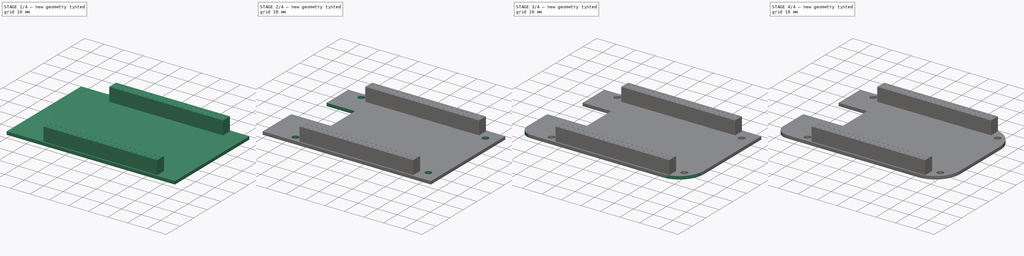
[diagram: build sequence overview — one tinted view per stage of 4, left to right]
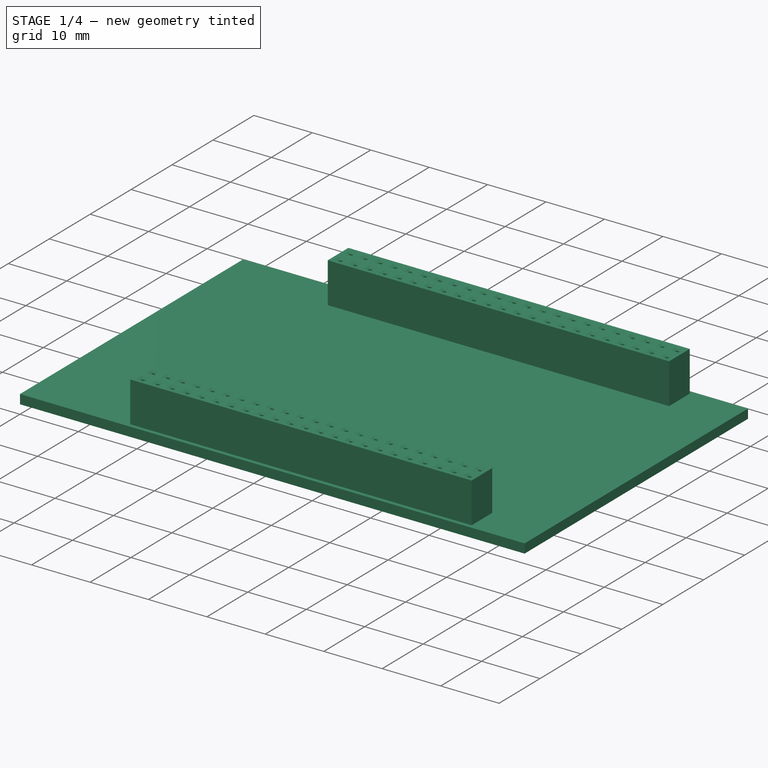
[diagram: stage 1 of 4 — iso view after this stage's code; geometry added in this stage tinted green]
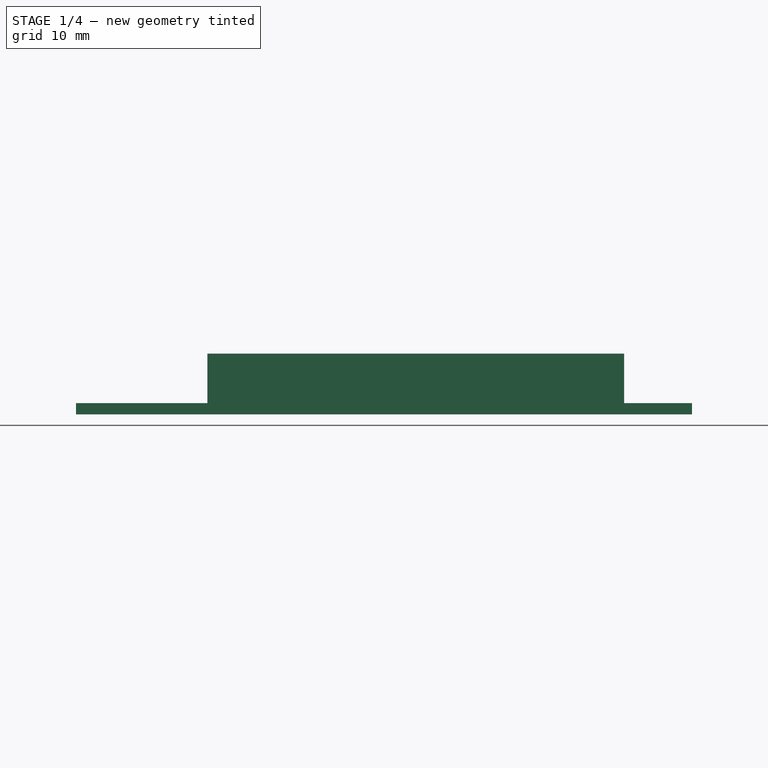
[diagram: stage 1 of 4 — front view after this stage's code; geometry added in this stage tinted green]
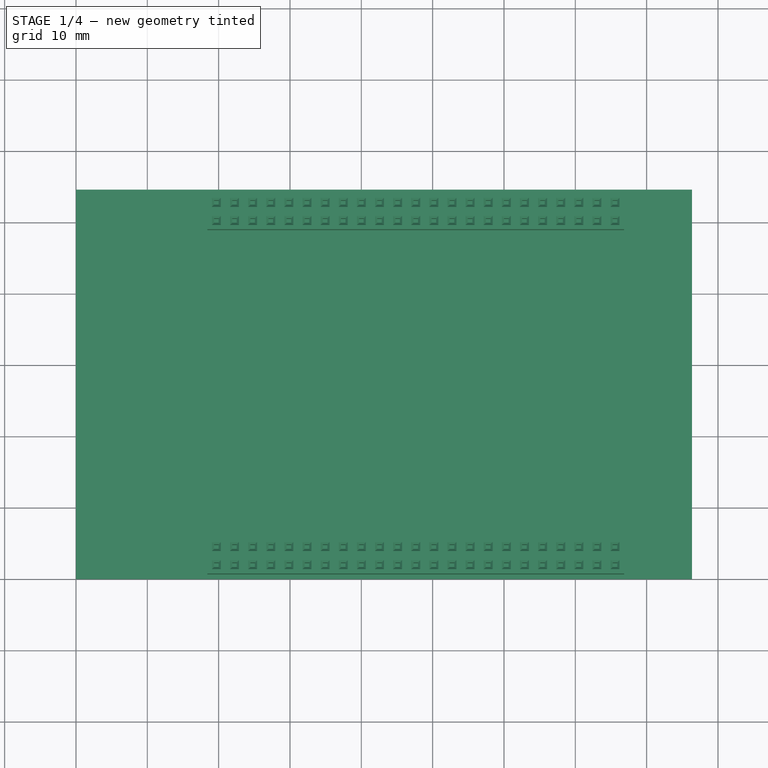
[diagram: stage 1 of 4 — top view after this stage's code; geometry added in this stage tinted green]
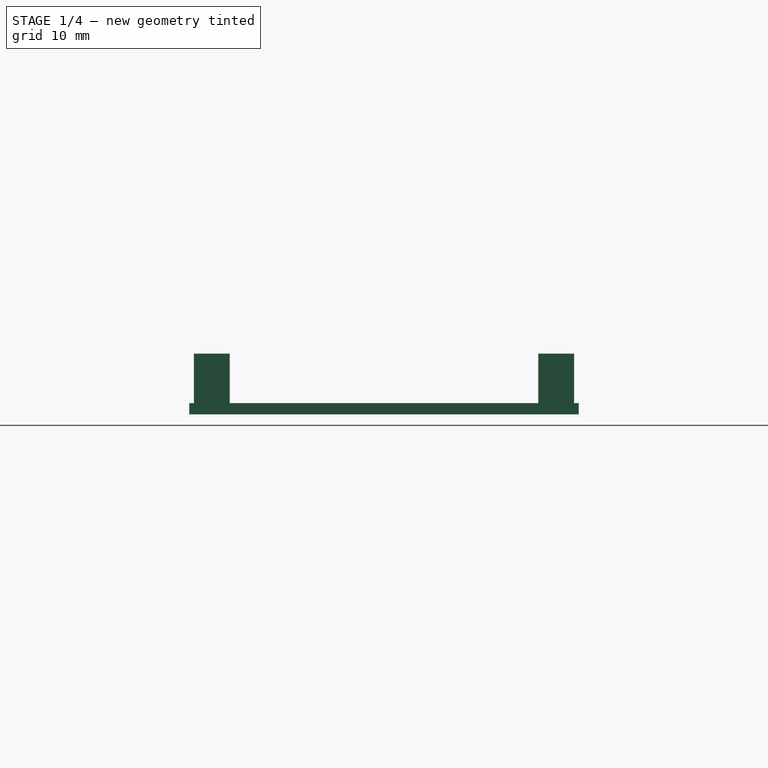
[diagram: stage 1 of 4 — right view after this stage's code; geometry added in this stage tinted green]
FCSTD DOCUMENT
Label: beaglebone_cape_model
License: CC-BY 3.0
LicenseURL: http://creativecommons.org/licenses/by/3.0/
objects: Part::Feature×24, Sketcher::SketchObject×9, PartDesign::Pocket×8, Part::MultiFuse×2, PartDesign::Pad×1
note: 53 computed .brp shape members not serialized (recipe doc carries the construction recipe); baked Part::Feature solids carry a one-line shape summary decoded from their .brp

FEATURE [Sketcher::SketchObject] Sketch  label="Outline Sketch"
  sketch-geometry (4):
    g0: LineSegment StartX=0 StartY=54.61 StartZ=0 EndX=86.36 EndY=54.61 EndZ=0
    g1: LineSegment StartX=86.36 StartY=54.61 StartZ=0 EndX=86.36 EndY=0 EndZ=0
    g2: LineSegment StartX=86.36 StartY=0 StartZ=0 EndX=0 EndY=0 EndZ=0
    g3: LineSegment StartX=0 StartY=0 StartZ=0 EndX=0 EndY=54.61 EndZ=0
  constraints (11):
    c: Coincident(g0,g1)
    c: Coincident(g1,g2)
    c: Coincident(g2,g3)
    c: Coincident(g3,g0)
    c: Horizontal(g0)
    c: Horizontal(g2)
    c: Vertical(g1)
    c: Vertical(g3)
    c: DistanceY(g3) = 54.61
    c: DistanceX(g0) = 86.36
    c: Coincident(g2,g-1)
FEATURE [PartDesign::Pad] Pad  label="Outline"
  Length = 1.58
  Length2 = 100
  Sketch = -> Sketch
  Type = 0
FEATURE [Part::Feature] Part__Feature142  label="Female Header Bottom 23"
  shape: bbox 2.54 x 5.029 x 8.509 mm, 42 faces (baked)
FEATURE [Part::Feature] Part__Feature  label="Female Header Bottom 22"
  Placement = pos=(-2.54,0,0) rot=(0,0,1;0rad)
  shape: bbox 2.54 x 5.029 x 8.509 mm, 42 faces (baked)
FEATURE [Part::Feature] Part__Feature143  label="Female Header Bottom 21"
  Placement = pos=(-5.08,0,0) rot=(0,0,1;0rad)
  shape: bbox 2.54 x 5.029 x 8.509 mm, 42 faces (baked)
FEATURE [Part::Feature] Part__Feature144  label="Female Header Bottom 20"
  Placement = pos=(-7.62,0,0) rot=(0,0,1;0rad)
  shape: bbox 2.54 x 5.029 x 8.509 mm, 42 faces (baked)
FEATURE [Part::Feature] Part__Feature145  label="Female Header Bottom 19"
  Placement = pos=(-10.16,0,0) rot=(0,0,1;0rad)
  shape: bbox 2.54 x 5.029 x 8.509 mm, 42 faces (baked)
FEATURE [Part::Feature] Part__Feature146  label="Female Header Bottom 18"
  Placement = pos=(-12.7,0,0) rot=(0,0,1;0rad)
  shape: bbox 2.54 x 5.029 x 8.509 mm, 42 faces (baked)
FEATURE [Part::Feature] Part__Feature147  label="Female Header Bottom 17"
  Placement = pos=(-15.24,0,0) rot=(0,0,1;0rad)
  shape: bbox 2.54 x 5.029 x 8.509 mm, 42 faces (baked)
FEATURE [Part::Feature] Part__Feature148  label="Female Header Bottom 16"
  Placement = pos=(-17.78,0,0) rot=(0,0,1;0rad)
  shape: bbox 2.54 x 5.029 x 8.509 mm, 42 faces (baked)
FEATURE [Part::Feature] Part__Feature149  label="Female Header Bottom 15"
  Placement = pos=(-20.32,0,0) rot=(0,0,1;0rad)
  shape: bbox 2.54 x 5.029 x 8.509 mm, 42 faces (baked)
FEATURE [Part::Feature] Part__Feature150  label="Female Header Bottom 14"
  Placement = pos=(-22.86,0,0) rot=(0,0,1;0rad)
  shape: bbox 2.54 x 5.029 x 8.509 mm, 42 faces (baked)
FEATURE [Part::Feature] Part__Feature151  label="Female Header Bottom 13"
  Placement = pos=(-25.4,0,0) rot=(0,0,1;0rad)
  shape: bbox 2.54 x 5.029 x 8.509 mm, 42 faces (baked)
FEATURE [Part::Feature] Part__Feature152  label="Female Header Bottom 12"
  Placement = pos=(-27.94,0,0) rot=(0,0,1;0rad)
  shape: bbox 2.54 x 5.029 x 8.509 mm, 42 faces (baked)
FEATURE [Part::Feature] Part__Feature153  label="Female Header Bottom 11"
  Placement = pos=(-30.48,0,0) rot=(0,0,1;0rad)
  shape: bbox 2.54 x 5.029 x 8.509 mm, 42 faces (baked)
FEATURE [Part::Feature] Part__Feature154  label="Female Header Bottom 10"
  Placement = pos=(-33.02,0,0) rot=(0,0,1;0rad)
  shape: bbox 2.54 x 5.029 x 8.509 mm, 42 faces (baked)
FEATURE [Part::Feature] Part__Feature155  label="Female Header Bottom 9"
  Placement = pos=(-35.56,0,0) rot=(0,0,1;0rad)
  shape: bbox 2.54 x 5.029 x 8.509 mm, 42 faces (baked)
FEATURE [Part::Feature] Part__Feature156  label="Female Header Bottom 8"
  Placement = pos=(-38.1,0,0) rot=(0,0,1;0rad)
  shape: bbox 2.54 x 5.029 x 8.509 mm, 42 faces (baked)
FEATURE [Part::Feature] Part__Feature157  label="Female Header Bottom 7"
  Placement = pos=(-40.64,0,0) rot=(0,0,1;0rad)
  shape: bbox 2.54 x 5.029 x 8.509 mm, 42 faces (baked)
FEATURE [Part::Feature] Part__Feature158  label="Female Header Bottom 6"
  Placement = pos=(-43.18,0,0) rot=(0,0,1;0rad)
  shape: bbox 2.54 x 5.029 x 8.509 mm, 42 faces (baked)
FEATURE [Part::Feature] Part__Feature159  label="Female Header Bottom 5"
  Placement = pos=(-45.72,0,0) rot=(0,0,1;0rad)
  shape: bbox 2.54 x 5.029 x 8.509 mm, 42 faces (baked)
FEATURE [Part::Feature] Part__Feature160  label="Female Header Bottom 4"
  Placement = pos=(-48.26,0,0) rot=(0,0,1;0rad)
  shape: bbox 2.54 x 5.029 x 8.509 mm, 42 faces (baked)
FEATURE [Part::Feature] Part__Feature161  label="Female Header Bottom 3"
  Placement = pos=(-50.8,0,0) rot=(0,0,1;0rad)
  shape: bbox 2.54 x 5.029 x 8.509 mm, 42 faces (baked)
FEATURE [Part::Feature] Part__Feature162  label="Female Header Bottom 2"
  Placement = pos=(-53.34,0,0) rot=(0,0,1;0rad)
  shape: bbox 2.54 x 5.029 x 8.509 mm, 42 faces (baked)
FEATURE [Part::Feature] Part__Feature163  label="Female Header Bottom 1"
  Placement = pos=(-55.88,0,0) rot=(0,0,1;0rad)
  shape: bbox 2.54 x 5.029 x 8.509 mm, 42 faces (baked)
FEATURE [Part::MultiFuse] Fusion  label="Bottom Header"
  Shapes = -> [Part__Feature142,Part__Feature,Part__Feature150,Part__Feature143,Part__Feature147,Part__Feature146,Part__Feature145,Part__Feature148,Part__Feature144,Part__Feature152,Part__Feature151,Part__Feature155,Part__Feature149,Part__Feature154,Part__Feature156,Part__Feature153,Part__Feature157,Part__Feature158,Part__Feature159,Part__Feature160,Part__Feature161,Part__Feature162,Part__Feature163]
FEATURE [Part::MultiFuse] Fusion001  label="Top Header"
  Placement = pos=(0,48.26,0) rot=(0,0,1;0rad)
FEATURE [Part::Feature] Part__Feature164  label="Audio Jack"
  Placement = pos=(0,9,1.7) rot=(1,0,0;1.5708rad)
  shape: bbox 15 x 12 x 6 mm, 84 faces (baked)
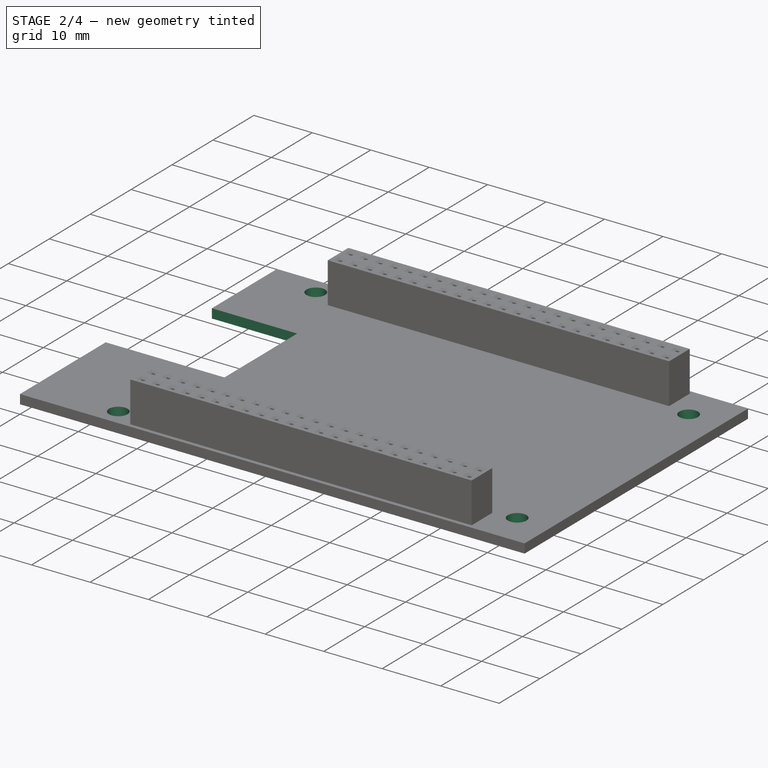
[diagram: stage 2 of 4 — iso view after this stage's code; geometry added in this stage tinted green]
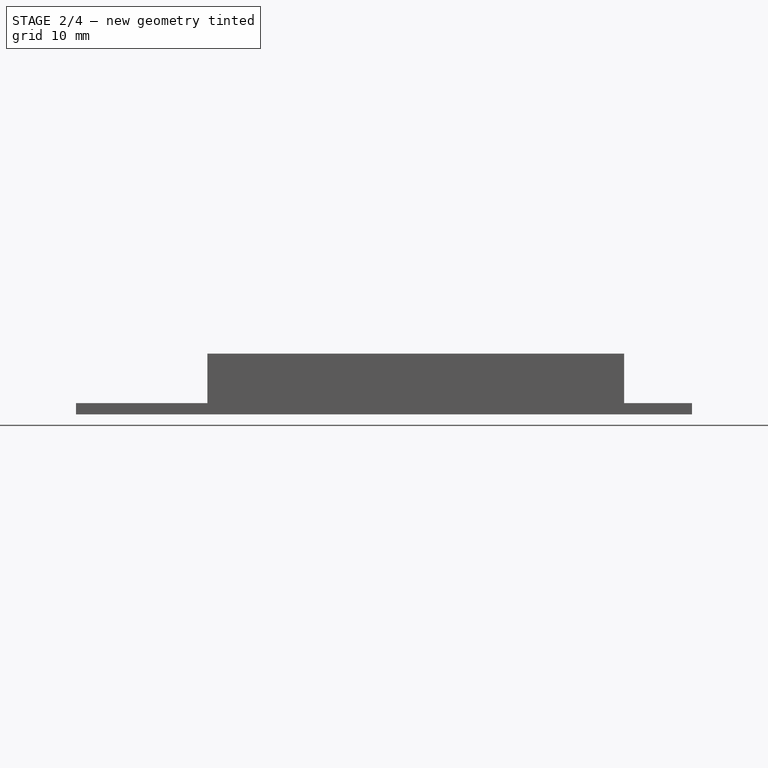
[diagram: stage 2 of 4 — front view after this stage's code; geometry added in this stage tinted green]
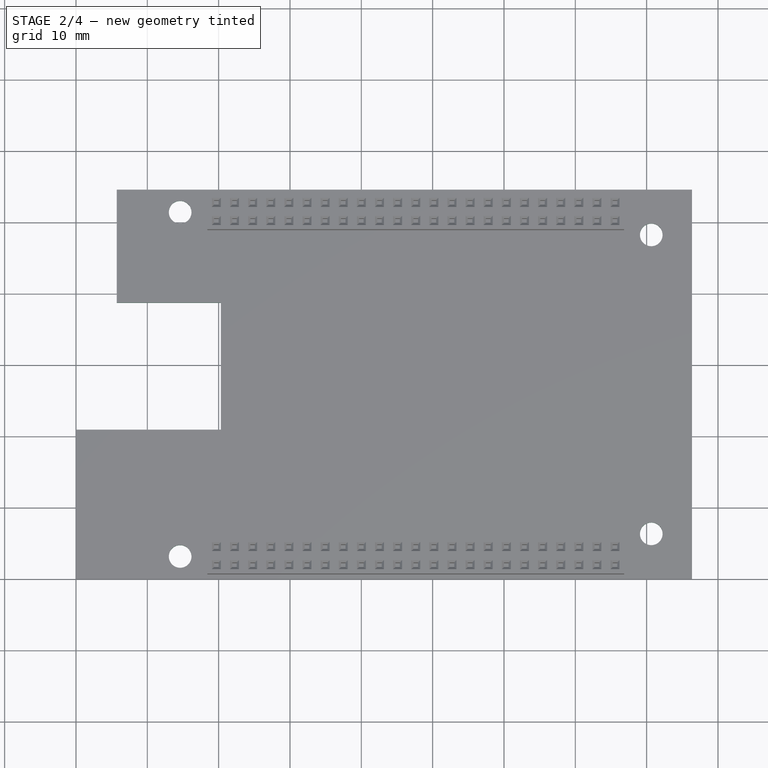
[diagram: stage 2 of 4 — top view after this stage's code; geometry added in this stage tinted green]
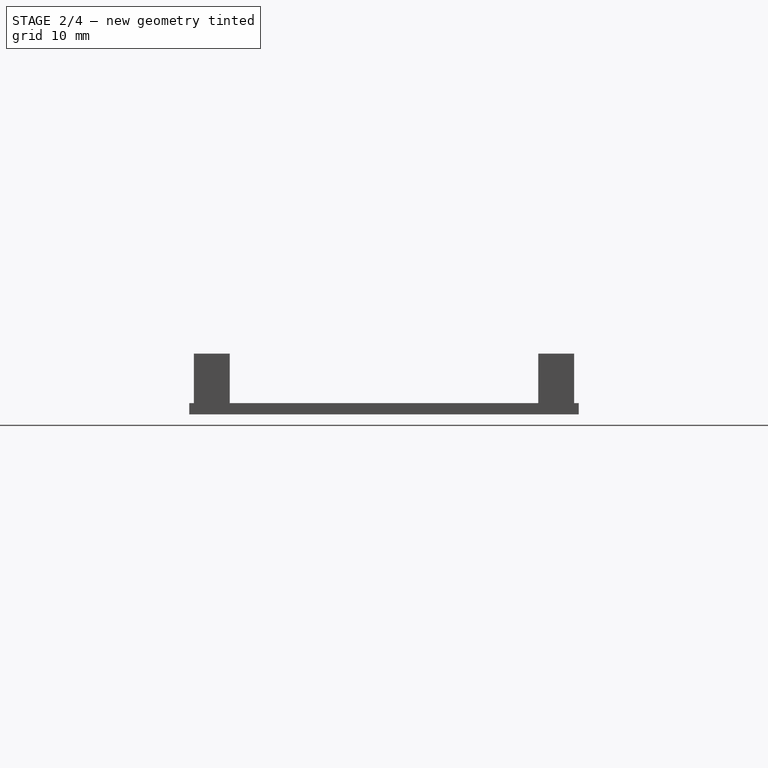
[diagram: stage 2 of 4 — right view after this stage's code; geometry added in this stage tinted green]
FEATURE [Sketcher::SketchObject] Sketch001
  Placement = pos=(0,0,1.58) rot=(0,0,1;0rad)
  Support = -> Pad [Face6]
  sketch-geometry (4):
    g0: LineSegment StartX=0 StartY=38.735 StartZ=0 EndX=20.32 EndY=38.735 EndZ=0
    g1: LineSegment StartX=20.32 StartY=38.735 StartZ=0 EndX=20.32 EndY=20.955 EndZ=0
    g2: LineSegment StartX=20.32 StartY=20.955 StartZ=0 EndX=0 EndY=20.955 EndZ=0
    g3: LineSegment StartX=0 StartY=20.955 StartZ=0 EndX=0 EndY=38.735 EndZ=0
  constraints (12):
    c: Coincident(g0,g1)
    c: Coincident(g1,g2)
    c: Coincident(g2,g3)
    c: Coincident(g3,g0)
    c: Horizontal(g0)
    c: Horizontal(g2)
    c: Vertical(g1)
    c: Vertical(g3)
    c: DistanceY(g3) = 17.78
    c: DistanceX(g-2,g0) = 0
    c: DistanceY(g-1,g1) = 20.955
    c: DistanceX(g2) = -20.32
FEATURE [PartDesign::Pocket] Pocket  label="Ethernet Cut Out"
  Length = 1.58
  Sketch = -> Sketch001
  Type = 0
FEATURE [Sketcher::SketchObject] Sketch002
  ExternalGeometry = -> [Pocket]
  Placement = pos=(0,0,1.58) rot=(0,0,1;0rad)
  Support = -> Pocket [Face5]
  sketch-geometry (4):
    g0: LineSegment StartX=0 StartY=54.61 StartZ=0 EndX=5.715 EndY=54.61 EndZ=0
    g1: LineSegment StartX=5.715 StartY=54.61 StartZ=0 EndX=5.715 EndY=38.735 EndZ=0
    g2: LineSegment StartX=5.715 StartY=38.735 StartZ=0 EndX=0 EndY=38.735 EndZ=0
    g3: LineSegment StartX=0 StartY=38.735 StartZ=0 EndX=0 EndY=54.61 EndZ=0
  constraints (11):
    c: Coincident(g0,g1)
    c: Coincident(g1,g2)
    c: Coincident(g2,g3)
    c: Coincident(g3,g0)
    c: Horizontal(g0)
    c: Horizontal(g2)
    c: Vertical(g1)
    c: Vertical(g3)
    c: DistanceY(g3) = 15.875
    c: Coincident(g0,g-3)
    c: DistanceX(g2) = -5.715
FEATURE [PartDesign::Pocket] Pocket001  label="Power Button Cut Out"
  Length = 1.58
  Sketch = -> Sketch002
  Type = 0
FEATURE [Sketcher::SketchObject] Sketch003
  ExternalGeometry = -> [Pocket001]
  Placement = pos=(0,0,1.58) rot=(0,0,1;0rad)
  Support = -> Pocket001 [Face5]
  sketch-geometry (4):
    g0: Circle CenterX=14.605 CenterY=51.435 CenterZ=0 NormalX=0 NormalY=0 NormalZ=1 Radius=1.5875
    g1: Circle CenterX=14.605 CenterY=3.175 CenterZ=0 NormalX=0 NormalY=0 NormalZ=1 Radius=1.5875
    g2: Circle CenterX=80.645 CenterY=48.26 CenterZ=0 NormalX=0 NormalY=0 NormalZ=1 Radius=1.5875
    g3: Circle CenterX=80.645 CenterY=6.35 CenterZ=0 NormalX=0 NormalY=0 NormalZ=1 Radius=1.5875
  constraints (12):
    c: Radius(g0) = 1.5875
    c: Distance(g0,g-3) = 51.435
    c: DistanceX(g-1,g0) = 14.605
    c: Radius(g1) = 1.5875
    c: DistanceX(g-2,g1) = 14.605
    c: Distance(g1,g-3) = 3.175
    c: Radius(g2) = 1.5875
    c: Distance(g2,g-3) = 48.26
    c: DistanceX(g-2,g2) = 80.645
    c: Radius(g3) = 1.5875
    c: DistanceX(g-2,g3) = 80.645
    c: Distance(g3,g-3) = 6.35
FEATURE [PartDesign::Pocket] Pocket002  label="Holes"
  Length = 1.58
  Sketch = -> Sketch003
  Type = 0
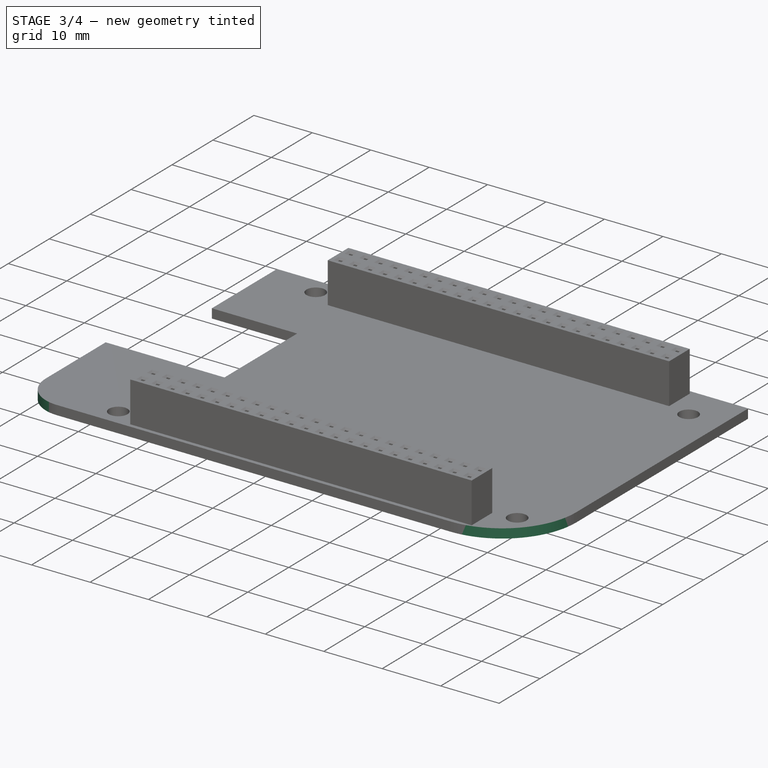
[diagram: stage 3 of 4 — iso view after this stage's code; geometry added in this stage tinted green]
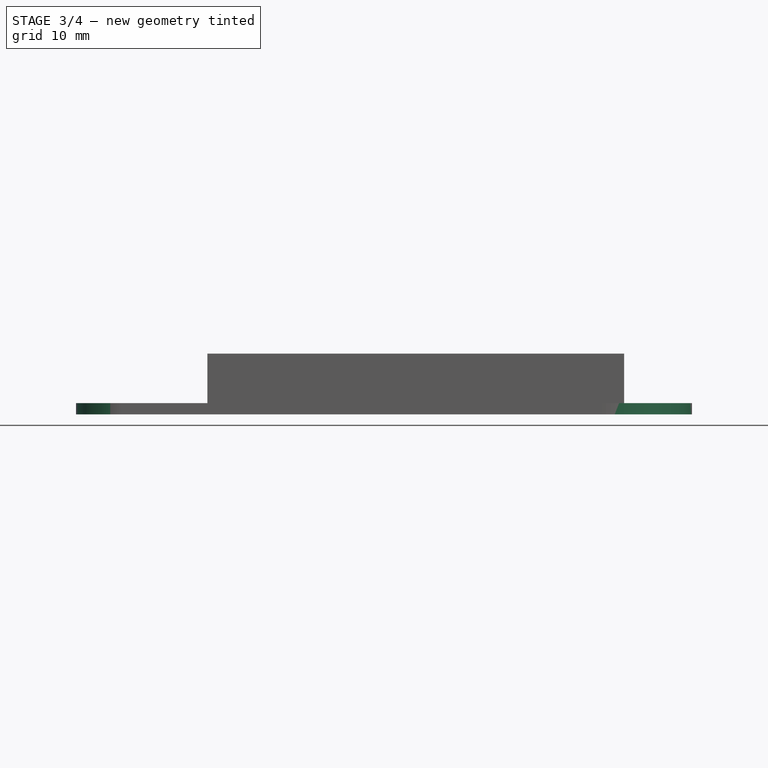
[diagram: stage 3 of 4 — front view after this stage's code; geometry added in this stage tinted green]
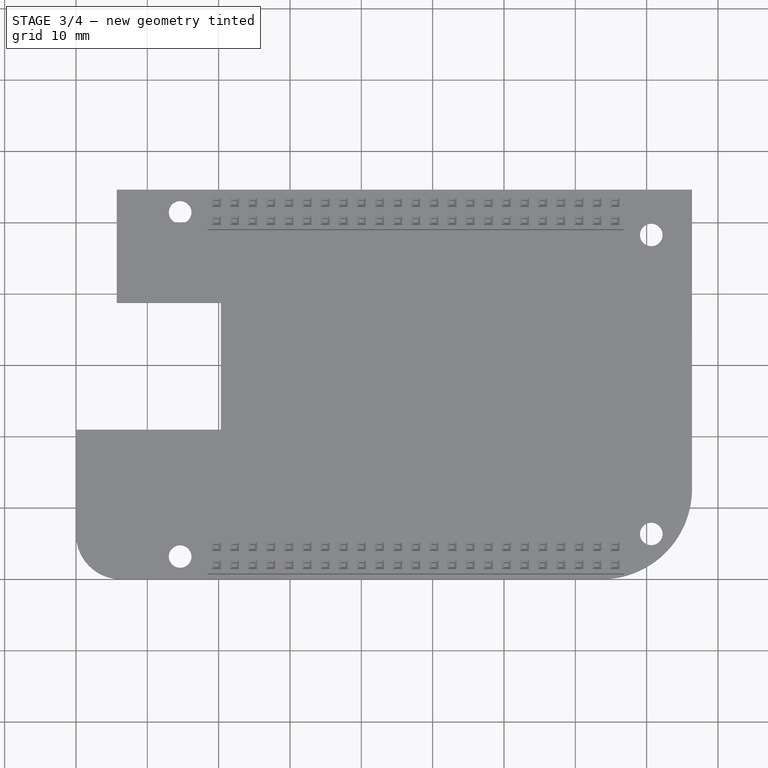
[diagram: stage 3 of 4 — top view after this stage's code; geometry added in this stage tinted green]
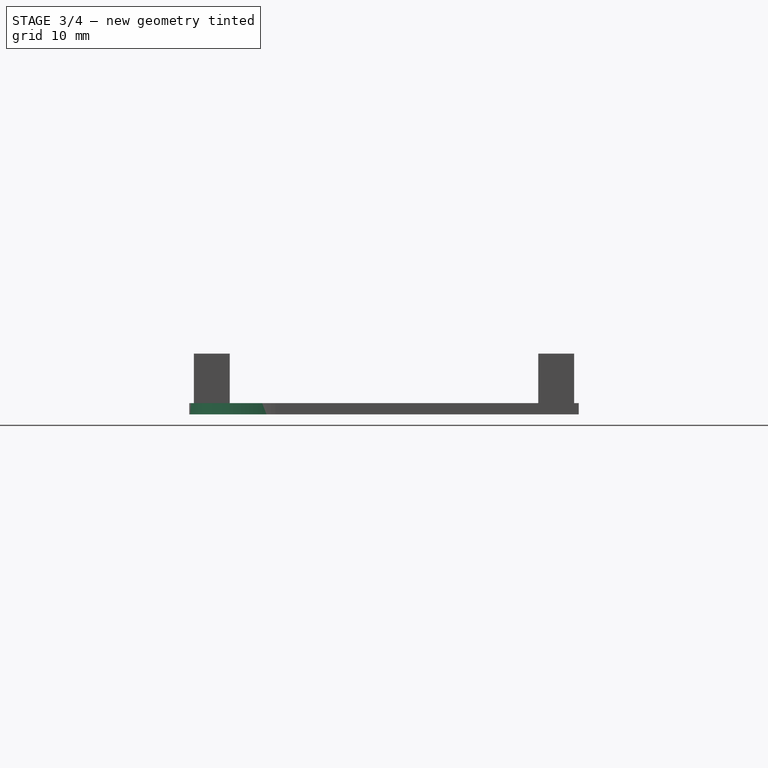
[diagram: stage 3 of 4 — right view after this stage's code; geometry added in this stage tinted green]
FEATURE [Sketcher::SketchObject] Sketch004
  ExternalGeometry = -> [Pocket002]
  Placement = pos=(0,0,1.58) rot=(0,0,1;0rad)
  Support = -> Pocket002 [Face5]
  sketch-geometry (7):
    g0: LineSegment [constr] StartX=0 StartY=20.955 StartZ=0 EndX=86.36 EndY=20.955 EndZ=0
    g1: LineSegment [constr] StartX=86.36 StartY=20.955 StartZ=0 EndX=86.36 EndY=0 EndZ=0
    g2: LineSegment [constr] StartX=86.36 StartY=0 StartZ=0 EndX=6.35 EndY=0 EndZ=0
    g3: LineSegment [constr] StartX=0 StartY=6.35 StartZ=0 EndX=0 EndY=20.955 EndZ=0
    g4: ArcOfCircle CenterX=6.35 CenterY=6.35 CenterZ=0 NormalX=0 NormalY=0 NormalZ=1 Radius=6.35 StartAngle=3.14159 EndAngle=4.71239
    g5: LineSegment StartX=0 StartY=6.35 StartZ=0 EndX=0 EndY=0 EndZ=0
    g6: LineSegment StartX=0 StartY=0 StartZ=0 EndX=6.35 EndY=0 EndZ=0
  constraints (17):
    c: Coincident(g0,g1)
    c: Coincident(g1,g2)
    c: Coincident(g3,g0)
    c: Horizontal(g0)
    c: Horizontal(g2)
    c: Vertical(g1)
    c: Vertical(g3)
    c: Tangent(g3,g4)
    c: Tangent(g2,g4)
    c: Radius(g4) = 6.35
    c: Coincident(g-3,g0)
    c: Coincident(g-4,g1)
    c: Vertical(g5)
    c: Coincident(g5,g-1)
    c: Coincident(g3,g5)
    c: Coincident(g6,g-1)
    c: Coincident(g6,g2)
FEATURE [PartDesign::Pocket] Pocket003  label="Bottom Left Hand Corner"
  Length = 1.58
  Sketch = -> Sketch004
  Type = 0
FEATURE [Sketcher::SketchObject] Sketch005
  ExternalGeometry = -> [Pocket003]
  Placement = pos=(0,0,1.58) rot=(0,0,1;0rad)
  Support = -> Pocket003 [Face5]
  sketch-geometry (7):
    g0: LineSegment [constr] StartX=0 StartY=54.61 StartZ=0 EndX=86.36 EndY=54.61 EndZ=0
    g1: LineSegment [constr] StartX=86.36 StartY=54.61 StartZ=0 EndX=86.36 EndY=12.7 EndZ=0
    g2: LineSegment [constr] StartX=73.66 StartY=0 StartZ=0 EndX=0 EndY=0 EndZ=0
    g3: LineSegment [constr] StartX=0 StartY=0 StartZ=0 EndX=0 EndY=54.61 EndZ=0
    g4: ArcOfCircle CenterX=73.66 CenterY=12.7 CenterZ=0 NormalX=0 NormalY=0 NormalZ=1 Radius=12.7 StartAngle=4.71239 EndAngle=6.28319
    g5: LineSegment StartX=73.66 StartY=0 StartZ=0 EndX=86.36 EndY=0 EndZ=0
    g6: LineSegment StartX=86.36 StartY=0 StartZ=0 EndX=86.36 EndY=12.7 EndZ=0
  constraints (17):
    c: Coincident(g0,g1)
    c: Coincident(g2,g3)
    c: Coincident(g3,g0)
    c: Horizontal(g0)
    c: Horizontal(g2)
    c: Vertical(g1)
    c: Vertical(g3)
    c: Tangent(g2,g4)
    c: Tangent(g1,g4)
    c: Radius(g4) = 12.7
    c: Coincident(g2,g-1)
    c: Coincident(g0,g-4)
    c: Horizontal(g5)
    c: Coincident(g5,g-4)
    c: Coincident(g5,g2)
    c: Coincident(g6,g1)
    c: Coincident(g6,g5)
FEATURE [PartDesign::Pocket] Pocket004  label="Bottom Right Hand Corner"
  Length = 1.58
  Sketch = -> Sketch005
  Type = 0
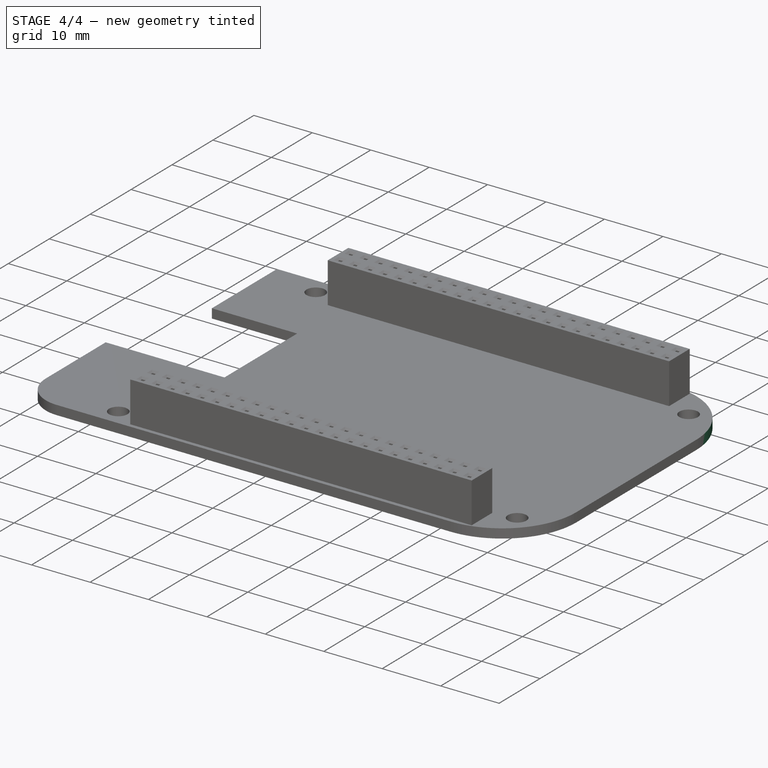
[diagram: stage 4 of 4 — iso view after this stage's code; geometry added in this stage tinted green]
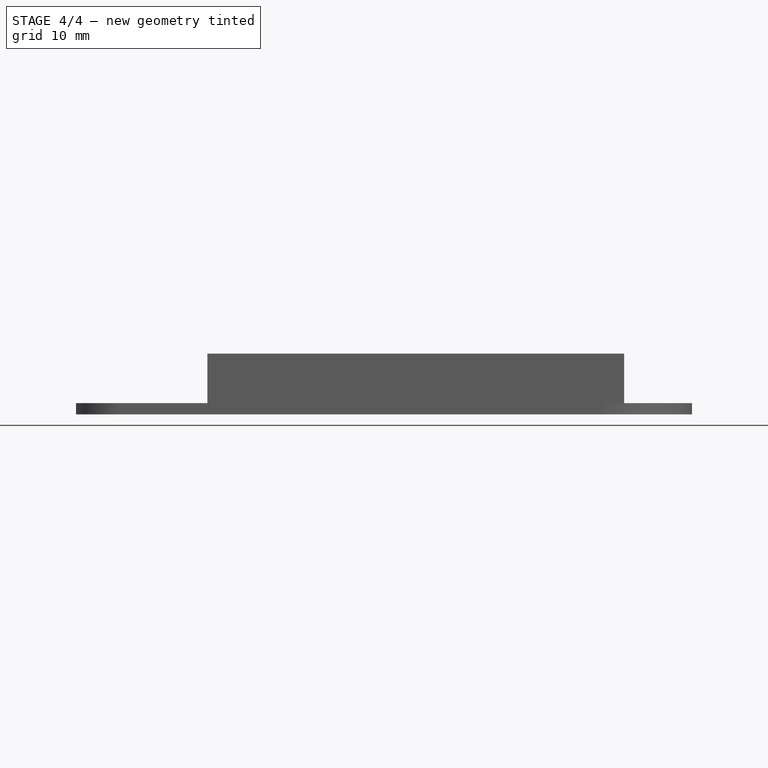
[diagram: stage 4 of 4 — front view after this stage's code; geometry added in this stage tinted green]
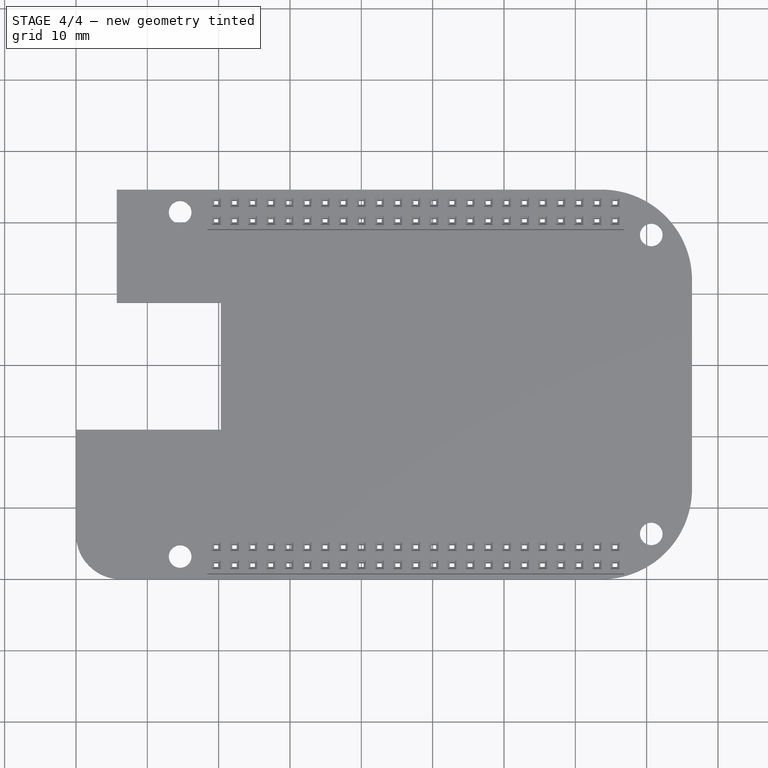
[diagram: stage 4 of 4 — top view after this stage's code; geometry added in this stage tinted green]
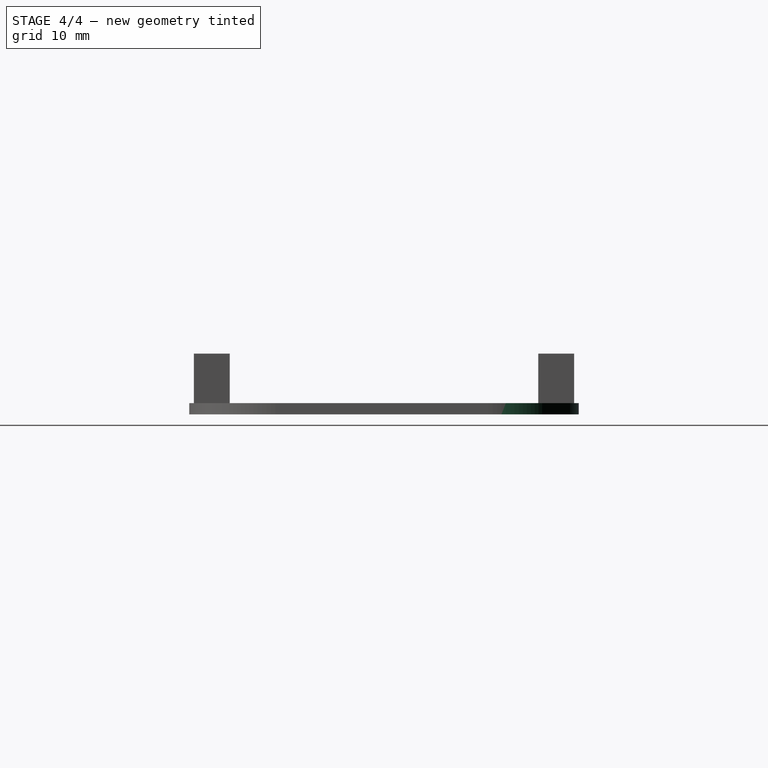
[diagram: stage 4 of 4 — right view after this stage's code; geometry added in this stage tinted green]
FEATURE [Sketcher::SketchObject] Sketch006
  ExternalGeometry = -> [Pocket004]
  Placement = pos=(0,0,1.58) rot=(0,0,1;0rad)
  Support = -> Pocket004 [Face4]
  sketch-geometry (11):
    g0: LineSegment [constr] StartX=0 StartY=54.61 StartZ=0 EndX=86.36 EndY=54.61 EndZ=0
    g1: LineSegment [constr] StartX=86.36 StartY=54.61 StartZ=0 EndX=86.36 EndY=0 EndZ=0
    g2: LineSegment [constr] StartX=86.36 StartY=0 StartZ=0 EndX=0 EndY=0 EndZ=0
    g3: LineSegment [constr] StartX=0 StartY=0 StartZ=0 EndX=0 EndY=54.61 EndZ=0
    g4: LineSegment [constr] StartX=0 StartY=54.61 StartZ=0 EndX=73.66 EndY=54.61 EndZ=0
    g5: LineSegment [constr] StartX=86.36 StartY=41.91 StartZ=0 EndX=86.36 EndY=0 EndZ=0
    g6: LineSegment [constr] StartX=86.36 StartY=0 StartZ=0 EndX=0 EndY=0 EndZ=0
    g7: LineSegment [constr] StartX=0 StartY=0 StartZ=0 EndX=0 EndY=54.61 EndZ=0
    g8: ArcOfCircle CenterX=73.66 CenterY=41.91 CenterZ=0 NormalX=0 NormalY=0 NormalZ=1 Radius=12.7 StartAngle=0 EndAngle=1.5708
    g9: LineSegment StartX=73.66 StartY=54.61 StartZ=0 EndX=86.36 EndY=54.61 EndZ=0
    g10: LineSegment StartX=86.36 StartY=41.91 StartZ=0 EndX=86.36 EndY=54.61 EndZ=0
  constraints (26):
    c: Coincident(g0,g1)
    c: Coincident(g1,g2)
    c: Coincident(g2,g3)
    c: Coincident(g3,g0)
    c: Horizontal(g0)
    c: Horizontal(g2)
    c: Vertical(g1)
    c: Vertical(g3)
    c: Coincident(g2,g-1)
    c: Coincident(g-3,g0)
    c: Coincident(g5,g6)
    c: Coincident(g6,g7)
    c: Coincident(g7,g4)
    c: Horizontal(g4)
    c: Horizontal(g6)
    c: Vertical(g5)
    c: Vertical(g7)
    c: Tangent(g4,g8)
    c: Tangent(g5,g8)
    c: Radius(g8) = 12.7
    c: Coincident(g4,g0)
    c: Coincident(g5,g1)
    c: Coincident(g9,g0)
    c: Coincident(g9,g4)
    c: Coincident(g10,g0)
    c: Coincident(g10,g5)
FEATURE [PartDesign::Pocket] Pocket005  label="Top Right Hand Corner"
  Length = 1.58
  Sketch = -> Sketch006
  Type = 0
FEATURE [Sketcher::SketchObject] Sketch007
  Placement = pos=(0,0,1.58) rot=(0,0,1;0rad)
  Support = -> Pocket005 [Face3]
  sketch-geometry (71):
    g0: LineSegment [constr] StartX=19.685 StartY=4.445 StartZ=0 EndX=75.565 EndY=4.445 EndZ=0
    g1: LineSegment [constr] StartX=75.565 StartY=4.445 StartZ=0 EndX=75.565 EndY=1.905 EndZ=0
    g2: LineSegment [constr] StartX=75.565 StartY=1.905 StartZ=0 EndX=19.685 EndY=1.905 EndZ=0
    g3: LineSegment [constr] StartX=19.685 StartY=1.905 StartZ=0 EndX=19.685 EndY=4.445 EndZ=0
    g4: LineSegment [constr] StartX=22.225 StartY=4.445 StartZ=0 EndX=22.225 EndY=1.905 EndZ=0
    g5: LineSegment [constr] StartX=24.765 StartY=4.445 StartZ=0 EndX=24.765 EndY=1.905 EndZ=0
    g6: LineSegment [constr] StartX=27.305 StartY=4.445 StartZ=0 EndX=27.305 EndY=1.905 EndZ=0
    g7: LineSegment [constr] StartX=29.845 StartY=4.445 StartZ=0 EndX=29.845 EndY=1.905 EndZ=0
    g8: LineSegment [constr] StartX=32.385 StartY=4.445 StartZ=0 EndX=32.385 EndY=1.905 EndZ=0
    g9: LineSegment [constr] StartX=34.925 StartY=4.445 StartZ=0 EndX=34.925 EndY=1.905 EndZ=0
    g10: LineSegment [constr] StartX=37.465 StartY=4.445 StartZ=0 EndX=37.465 EndY=1.905 EndZ=0
    g11: LineSegment [constr] StartX=40.005 StartY=4.445 StartZ=0 EndX=40.005 EndY=1.905 EndZ=0
    g12: LineSegment [constr] StartX=42.545 StartY=4.445 StartZ=0 EndX=42.545 EndY=1.905 EndZ=0
    g13: LineSegment [constr] StartX=45.085 StartY=4.445 StartZ=0 EndX=45.085 EndY=1.905 EndZ=0
    g14: LineSegment [constr] StartX=47.625 StartY=4.445 StartZ=0 EndX=47.625 EndY=1.905 EndZ=0
    g15: LineSegment [constr] StartX=50.165 StartY=4.445 StartZ=0 EndX=50.165 EndY=1.905 EndZ=0
    g16: LineSegment [constr] StartX=52.705 StartY=4.445 StartZ=0 EndX=52.705 EndY=1.905 EndZ=0
    g17: LineSegment [constr] StartX=55.245 StartY=4.445 StartZ=0 EndX=55.245 EndY=1.905 EndZ=0
    g18: LineSegment [constr] StartX=57.785 StartY=4.445 StartZ=0 EndX=57.785 EndY=1.905 EndZ=0
    g19: LineSegment [constr] StartX=60.325 StartY=4.445 StartZ=0 EndX=60.325 EndY=1.905 EndZ=0
    g20: LineSegment [constr] StartX=62.865 StartY=4.445 StartZ=0 EndX=62.865 EndY=1.905 EndZ=0
    g21: LineSegment [constr] StartX=65.405 StartY=4.445 StartZ=0 EndX=65.405 EndY=1.905 EndZ=0
    g22: LineSegment [constr] StartX=67.945 StartY=4.445 StartZ=0 EndX=67.945 EndY=1.905 EndZ=0
    g23: LineSegment [constr] StartX=70.485 StartY=4.445 StartZ=0 EndX=70.485 EndY=1.905 EndZ=0
    g24: LineSegment [constr] StartX=73.025 StartY=4.445 StartZ=0 EndX=73.025 EndY=1.905 EndZ=0
    g25: Circle CenterX=19.685 CenterY=4.445 CenterZ=0 NormalX=0 NormalY=0 NormalZ=1 Radius=0.51
    g26: Circle CenterX=19.685 CenterY=1.905 CenterZ=0 NormalX=0 NormalY=0 NormalZ=1 Radius=0.51
    g27: Circle CenterX=22.225 CenterY=4.445 CenterZ=0 NormalX=0 NormalY=0 NormalZ=1 Radius=0.51
    g28: Circle CenterX=22.225 CenterY=1.905 CenterZ=0 NormalX=0 NormalY=0 NormalZ=1 Radius=0.51
    g29: Circle CenterX=24.765 CenterY=4.445 CenterZ=0 NormalX=0 NormalY=0 NormalZ=1 Radius=0.51
    g30: Circle CenterX=27.305 CenterY=4.445 CenterZ=0 NormalX=0 NormalY=0 NormalZ=1 Radius=0.51
    g31: Circle CenterX=29.845 CenterY=4.445 CenterZ=0 NormalX=0 NormalY=0 NormalZ=1 Radius=0.51
    g32: Circle CenterX=32.385 CenterY=4.445 CenterZ=0 NormalX=0 NormalY=0 NormalZ=1 Radius=0.51
    g33: Circle CenterX=34.925 CenterY=4.445 CenterZ=0 NormalX=0 NormalY=0 NormalZ=1 Radius=0.51
    g34: Circle CenterX=37.465 CenterY=4.445 CenterZ=0 NormalX=0 NormalY=0 NormalZ=1 Radius=0.51
    g35: Circle CenterX=40.005 CenterY=4.445 CenterZ=0 NormalX=0 NormalY=0 NormalZ=1 Radius=0.51
    g36: Circle CenterX=42.545 CenterY=4.445 CenterZ=0 NormalX=0 NormalY=0 NormalZ=1 Radius=0.51
    g37: Circle CenterX=45.085 CenterY=4.445 CenterZ=0 NormalX=0 NormalY=0 NormalZ=1 Radius=0.51
    g38: Circle CenterX=47.625 CenterY=4.445 CenterZ=0 NormalX=0 NormalY=0 NormalZ=1 Radius=0.51
    g39: Circle CenterX=50.165 CenterY=4.445 CenterZ=0 NormalX=0 NormalY=0 NormalZ=1 Radius=0.51
    g40: Circle CenterX=52.705 CenterY=4.445 CenterZ=0 NormalX=0 NormalY=0 NormalZ=1 Radius=0.51
    g41: Circle CenterX=55.245 CenterY=4.445 CenterZ=0 NormalX=0 NormalY=0 NormalZ=1 Radius=0.51
    g42: Circle CenterX=57.785 CenterY=4.445 CenterZ=0 NormalX=0 NormalY=0 NormalZ=1 Radius=0.51
    g43: Circle CenterX=60.325 CenterY=4.445 CenterZ=0 NormalX=0 NormalY=0 NormalZ=1 Radius=0.51
    g44: Circle CenterX=62.865 CenterY=4.445 CenterZ=0 NormalX=0 NormalY=0 NormalZ=1 Radius=0.51
    g45: Circle CenterX=65.405 CenterY=4.445 CenterZ=0 NormalX=0 NormalY=0 NormalZ=1 Radius=0.51
    g46: Circle CenterX=67.945 CenterY=4.445 CenterZ=0 NormalX=0 NormalY=0 NormalZ=1 Radius=0.51
    g47: Circle CenterX=70.485 CenterY=4.445 CenterZ=0 NormalX=0 NormalY=0 NormalZ=1 Radius=0.51
    g48: Circle CenterX=73.025 CenterY=4.445 CenterZ=0 NormalX=0 NormalY=0 NormalZ=1 Radius=0.51
    g49: Circle CenterX=24.765 CenterY=1.905 CenterZ=0 NormalX=0 NormalY=0 NormalZ=1 Radius=0.51
    g50: Circle CenterX=27.305 CenterY=1.905 CenterZ=0 NormalX=0 NormalY=0 NormalZ=1 Radius=0.51
    g51: Circle CenterX=29.845 CenterY=1.905 CenterZ=0 NormalX=0 NormalY=0 NormalZ=1 Radius=0.51
    g52: Circle CenterX=32.385 CenterY=1.905 CenterZ=0 NormalX=0 NormalY=0 NormalZ=1 Radius=0.51
    g53: Circle CenterX=34.925 CenterY=1.905 CenterZ=0 NormalX=0 NormalY=0 NormalZ=1 Radius=0.51
    g54: Circle CenterX=37.465 CenterY=1.905 CenterZ=0 NormalX=0 NormalY=0 NormalZ=1 Radius=0.51
    g55: Circle CenterX=40.005 CenterY=1.905 CenterZ=0 NormalX=0 NormalY=0 NormalZ=1 Radius=0.51
    g56: Circle CenterX=42.545 CenterY=1.905 CenterZ=0 NormalX=0 NormalY=0 NormalZ=1 Radius=0.51
    g57: Circle CenterX=45.085 CenterY=1.905 CenterZ=0 NormalX=0 NormalY=0 NormalZ=1 Radius=0.51
    g58: Circle CenterX=47.625 CenterY=1.905 CenterZ=0 NormalX=0 NormalY=0 NormalZ=1 Radius=0.51
    g59: Circle CenterX=50.165 CenterY=1.905 CenterZ=0 NormalX=0 NormalY=0 NormalZ=1 Radius=0.51
    g60: Circle CenterX=75.565 CenterY=4.445 CenterZ=0 NormalX=0 NormalY=0 NormalZ=1 Radius=0.51
    g61: Circle CenterX=52.705 CenterY=1.905 CenterZ=0 NormalX=0 NormalY=0 NormalZ=1 Radius=0.51
    g62: Circle CenterX=60.325 CenterY=1.905 CenterZ=0 NormalX=0 NormalY=0 NormalZ=1 Radius=0.51
    g63: Circle CenterX=57.785 CenterY=1.905 CenterZ=0 NormalX=0 NormalY=0 NormalZ=1 Radius=0.51
    g64: Circle CenterX=55.245 CenterY=1.905 CenterZ=0 NormalX=0 NormalY=0 NormalZ=1 Radius=0.51
    g65: Circle CenterX=62.865 CenterY=1.905 CenterZ=0 NormalX=0 NormalY=0 NormalZ=1 Radius=0.51
    g66: Circle CenterX=70.485 CenterY=1.905 CenterZ=0 NormalX=0 NormalY=0 NormalZ=1 Radius=0.51
    g67: Circle CenterX=73.025 CenterY=1.905 CenterZ=0 NormalX=0 NormalY=0 NormalZ=1 Radius=0.51
    g68: Circle CenterX=75.565 CenterY=1.905 CenterZ=0 NormalX=0 NormalY=0 NormalZ=1 Radius=0.51
    g69: Circle CenterX=67.945 CenterY=1.905 CenterZ=0 NormalX=0 NormalY=0 NormalZ=1 Radius=0.51
    g70: Circle CenterX=65.405 CenterY=1.905 CenterZ=0 NormalX=0 NormalY=0 NormalZ=1 Radius=0.51
  constraints (188):
    c: Coincident(g0,g1)
    c: Coincident(g1,g2)
    c: Coincident(g2,g3)
    c: Coincident(g3,g0)
    c: Horizontal(g0)
    c: Horizontal(g2)
    c: Vertical(g1)
    c: Vertical(g3)
    c: DistanceY(g3) = 2.54
    c: DistanceX(g-1,g2) = 19.685
    c: DistanceX(g2) = -55.88
    c: Vertical(g4)
    c: Equal(g3,g4)
    c: PointOnObject(g4,g0)
    c: DistanceX(g0,g4) = 2.54
    c: Equal(g4,g5)
    c: Parallel(g4,g5)
    c: PointOnObject(g5,g0)
    c: DistanceX(g4,g5) = 2.54
    c: Equal(g5,g6)
    c: Parallel(g5,g6)
    c: PointOnObject(g6,g0)
    c: DistanceX(g5,g6) = 2.54
    c: Parallel(g6,g7)
    c: Equal(g6,g7)
    c: PointOnObject(g7,g0)
    c: DistanceX(g6,g7) = 2.54
    c: Parallel(g7,g8)
    c: Equal(g7,g8)
    c: PointOnObject(g8,g0)
    c: DistanceX(g7,g8) = 2.54
    c: Parallel(g8,g9)
    c: Equal(g8,g9)
    c: PointOnObject(g9,g0)
    c: DistanceX(g8,g9) = 2.54
    c: Equal(g10,g9)
    c: Parallel(g9,g10)
    c: PointOnObject(g10,g0)
    c: DistanceX(g9,g10) = 2.54
    c: Parallel(g10,g11)
    c: Equal(g10,g11)
    c: PointOnObject(g11,g0)
    c: DistanceX(g10,g11) = 2.54
    c: Vertical(g12)
    c: Equal(g11,g12)
    c: PointOnObject(g12,g0)
    c: DistanceX(g11,g12) = 2.54
    c: Parallel(g13,g12)
    c: Equal(g12,g13)
    c: PointOnObject(g13,g0)
    c: DistanceX(g12,g13) = 2.54
    c: Parallel(g14,g13)
    c: Equal(g13,g14)
    c: PointOnObject(g14,g0)
    c: DistanceX(g13,g14) = 2.54
    c: Vertical(g15)
    c: Equal(g15,g14)
    c: PointOnObject(g15,g0)
    c: DistanceX(g14,g15) = 2.54
    c: Parallel(g16,g15)
    c: Equal(g15,g16)
    c: PointOnObject(g16,g0)
    c: DistanceX(g15,g16) = 2.54
    c: Equal(g16,g17)
    c: Parallel(g16,g17)
    c: PointOnObject(g17,g0)
    c: DistanceX(g16,g17) = 2.54
    c: Parallel(g18,g17)
    c: Equal(g17,g18)
    c: PointOnObject(g18,g0)
    c: DistanceX(g17,g18) = 2.54
    c: Parallel(g19,g18)
    c: Equal(g18,g19)
    c: DistanceX(g18,g19) = 2.54
    c: PointOnObject(g19,g0)
    c: Parallel(g20,g19)
    c: Equal(g20,g19)
    c: PointOnObject(g20,g0)
    c: DistanceX(g19,g20) = 2.54
    c: Parallel(g21,g20)
    c: Equal(g20,g21)
    c: PointOnObject(g21,g0)
    c: DistanceX(g20,g21) = 2.54
    c: Equal(g22,g21)
    c: Parallel(g21,g22)
    c: PointOnObject(g22,g0)
    c: DistanceX(g21,g22) = 2.54
    c: Equal(g23,g22)
    c: Parallel(g23,g22)
    c: PointOnObject(g23,g0)
    c: DistanceX(g23,g22) = -2.54
    c: Parallel(g24,g23)
    c: Equal(g24,g23)
    c: PointOnObject(g24,g0)
    c: DistanceX(g23,g24) = 2.54
    c: Radius(g25) = 0.51
    c: Coincident(g25,g0)
    c: Equal(g26,g25)
    c: Coincident(g2,g26)
    c: Equal(g26,g27)
    c: Coincident(g4,g27)
    c: Equal(g28,g27)
    c: Coincident(g28,g4)
    c: Equal(g25,g29)
    c: Coincident(g29,g5)
    c: Equal(g30,g29)
    c: Coincident(g30,g6)
    c: Equal(g31,g30)
    c: Coincident(g31,g7)
    c: Equal(g32,g31)
    c: Coincident(g32,g8)
    c: Equal(g33,g32)
    c: Coincident(g33,g9)
    c: Equal(g34,g33)
    c: Coincident(g34,g10)
    c: Equal(g35,g34)
    c: Coincident(g35,g11)
    c: Equal(g36,g35)
    c: Coincident(g36,g12)
    c: Equal(g37,g36)
    c: Coincident(g37,g13)
    c: Equal(g38,g37)
    c: Coincident(g38,g14)
    c: Equal(g39,g38)
    c: Coincident(g39,g15)
    c: Equal(g40,g39)
    c: Coincident(g40,g16)
    c: Equal(g41,g40)
    c: Coincident(g41,g17)
    c: Equal(g42,g41)
    c: Coincident(g42,g18)
    c: Equal(g42,g43)
    c: Coincident(g43,g19)
    c: Equal(g43,g44)
    c: Coincident(g44,g20)
    c: Equal(g45,g44)
    c: Coincident(g21,g45)
    c: Equal(g46,g45)
    c: Coincident(g46,g22)
    c: Equal(g46,g47)
    c: Coincident(g47,g23)
    c: Equal(g48,g47)
    c: Coincident(g48,g24)
    c: Equal(g49,g29)
    c: Coincident(g49,g5)
    c: Equal(g50,g25)
    c: Coincident(g50,g6)
    c: Equal(g51,g25)
    c: Coincident(g51,g7)
    c: Equal(g52,g25)
    c: Coincident(g8,g52)
    c: Equal(g53,g25)
    c: Coincident(g53,g9)
    c: Equal(g54,g25)
    c: Coincident(g54,g10)
    c: Equal(g55,g25)
    c: Coincident(g55,g11)
    c: Equal(g56,g25)
    c: Coincident(g12,g56)
    c: Equal(g57,g25)
    c: Coincident(g57,g13)
    c: Equal(g58,g29)
    c: Coincident(g58,g14)
    c: Equal(g59,g39)
    c: Coincident(g15,g59)
    c: Equal(g60,g48)
    c: Coincident(g60,g0)
    c: Equal(g61,g59)
    c: Equal(g62,g59)
    c: Equal(g63,g59)
    c: Equal(g64,g63)
    c: Equal(g63,g65)
    c: Coincident(g61,g16)
    c: Coincident(g17,g64)
    c: Coincident(g18,g63)
    c: Coincident(g62,g19)
    c: Coincident(g20,g65)
    c: Equal(g69,g70)
    c: Equal(g70,g67)
    c: Equal(g67,g37)
    c: Equal(g66,g67)
    c: Equal(g67,g68)
    c: Coincident(g1,g68)
    c: Coincident(g67,g24)
    c: Coincident(g66,g23)
    c: Coincident(g69,g22)
    c: Coincident(g21,g70)
    c: DistanceY(g-1,g0) = 4.445
FEATURE [PartDesign::Pocket] Pocket006  label="Bottom Connector Holes"
  Length = 1.58
  Sketch = -> Sketch007
  Type = 0
FEATURE [Sketcher::SketchObject] Sketch007001  label="Sketch008"
  Placement = pos=(0,0,1.58) rot=(0,0,1;0rad)
  Support = -> Pocket006 [Face3]
  sketch-geometry (71):
    g0: LineSegment [constr] StartX=19.685 StartY=52.705 StartZ=0 EndX=75.565 EndY=52.705 EndZ=0
    g1: LineSegment [constr] StartX=75.565 StartY=52.705 StartZ=0 EndX=75.565 EndY=50.165 EndZ=0
    g2: LineSegment [constr] StartX=75.565 StartY=50.165 StartZ=0 EndX=19.685 EndY=50.165 EndZ=0
    g3: LineSegment [constr] StartX=19.685 StartY=50.165 StartZ=0 EndX=19.685 EndY=52.705 EndZ=0
    g4: LineSegment [constr] StartX=22.225 StartY=52.705 StartZ=0 EndX=22.225 EndY=50.165 EndZ=0
    g5: LineSegment [constr] StartX=24.765 StartY=52.705 StartZ=0 EndX=24.765 EndY=50.165 EndZ=0
    g6: LineSegment [constr] StartX=27.305 StartY=52.705 StartZ=0 EndX=27.305 EndY=50.165 EndZ=0
    g7: LineSegment [constr] StartX=29.845 StartY=52.705 StartZ=0 EndX=29.845 EndY=50.165 EndZ=0
    g8: LineSegment [constr] StartX=32.385 StartY=52.705 StartZ=0 EndX=32.385 EndY=50.165 EndZ=0
    g9: LineSegment [constr] StartX=34.925 StartY=52.705 StartZ=0 EndX=34.925 EndY=50.165 EndZ=0
    g10: LineSegment [constr] StartX=37.465 StartY=52.705 StartZ=0 EndX=37.465 EndY=50.165 EndZ=0
    g11: LineSegment [constr] StartX=40.005 StartY=52.705 StartZ=0 EndX=40.005 EndY=50.165 EndZ=0
    g12: LineSegment [constr] StartX=42.545 StartY=52.705 StartZ=0 EndX=42.545 EndY=50.165 EndZ=0
    g13: LineSegment [constr] StartX=45.085 StartY=52.705 StartZ=0 EndX=45.085 EndY=50.165 EndZ=0
    g14: LineSegment [constr] StartX=47.625 StartY=52.705 StartZ=0 EndX=47.625 EndY=50.165 EndZ=0
    g15: LineSegment [constr] StartX=50.165 StartY=52.705 StartZ=0 EndX=50.165 EndY=50.165 EndZ=0
    g16: LineSegment [constr] StartX=52.705 StartY=52.705 StartZ=0 EndX=52.705 EndY=50.165 EndZ=0
    g17: LineSegment [constr] StartX=55.245 StartY=52.705 StartZ=0 EndX=55.245 EndY=50.165 EndZ=0
    g18: LineSegment [constr] StartX=57.785 StartY=52.705 StartZ=0 EndX=57.785 EndY=50.165 EndZ=0
    g19: LineSegment [constr] StartX=60.325 StartY=52.705 StartZ=0 EndX=60.325 EndY=50.165 EndZ=0
    g20: LineSegment [constr] StartX=62.865 StartY=52.705 StartZ=0 EndX=62.865 EndY=50.165 EndZ=0
    g21: LineSegment [constr] StartX=65.405 StartY=52.705 StartZ=0 EndX=65.405 EndY=50.165 EndZ=0
    g22: LineSegment [constr] StartX=67.945 StartY=52.705 StartZ=0 EndX=67.945 EndY=50.165 EndZ=0
    g23: LineSegment [constr] StartX=70.485 StartY=52.705 StartZ=0 EndX=70.485 EndY=50.165 EndZ=0
    g24: LineSegment [constr] StartX=73.025 StartY=52.705 StartZ=0 EndX=73.025 EndY=50.165 EndZ=0
    g25: Circle CenterX=19.685 CenterY=52.705 CenterZ=0 NormalX=0 NormalY=0 NormalZ=1 Radius=0.51
    g26: Circle CenterX=19.685 CenterY=50.165 CenterZ=0 NormalX=0 NormalY=0 NormalZ=1 Radius=0.51
    g27: Circle CenterX=22.225 CenterY=52.705 CenterZ=0 NormalX=0 NormalY=0 NormalZ=1 Radius=0.51
    g28: Circle CenterX=22.225 CenterY=50.165 CenterZ=0 NormalX=0 NormalY=0 NormalZ=1 Radius=0.51
    g29: Circle CenterX=24.765 CenterY=52.705 CenterZ=0 NormalX=0 NormalY=0 NormalZ=1 Radius=0.51
    g30: Circle CenterX=27.305 CenterY=52.705 CenterZ=0 NormalX=0 NormalY=0 NormalZ=1 Radius=0.51
    g31: Circle CenterX=29.845 CenterY=52.705 CenterZ=0 NormalX=0 NormalY=0 NormalZ=1 Radius=0.51
    g32: Circle CenterX=32.385 CenterY=52.705 CenterZ=0 NormalX=0 NormalY=0 NormalZ=1 Radius=0.51
    g33: Circle CenterX=34.925 CenterY=52.705 CenterZ=0 NormalX=0 NormalY=0 NormalZ=1 Radius=0.51
    g34: Circle CenterX=37.465 CenterY=52.705 CenterZ=0 NormalX=0 NormalY=0 NormalZ=1 Radius=0.51
    g35: Circle CenterX=40.005 CenterY=52.705 CenterZ=0 NormalX=0 NormalY=0 NormalZ=1 Radius=0.51
    g36: Circle CenterX=42.545 CenterY=52.705 CenterZ=0 NormalX=0 NormalY=0 NormalZ=1 Radius=0.51
    g37: Circle CenterX=45.085 CenterY=52.705 CenterZ=0 NormalX=0 NormalY=0 NormalZ=1 Radius=0.51
    g38: Circle CenterX=47.625 CenterY=52.705 CenterZ=0 NormalX=0 NormalY=0 NormalZ=1 Radius=0.51
    g39: Circle CenterX=50.165 CenterY=52.705 CenterZ=0 NormalX=0 NormalY=0 NormalZ=1 Radius=0.51
    g40: Circle CenterX=52.705 CenterY=52.705 CenterZ=0 NormalX=0 NormalY=0 NormalZ=1 Radius=0.51
    g41: Circle CenterX=55.245 CenterY=52.705 CenterZ=0 NormalX=0 NormalY=0 NormalZ=1 Radius=0.51
    g42: Circle CenterX=57.785 CenterY=52.705 CenterZ=0 NormalX=0 NormalY=0 NormalZ=1 Radius=0.51
    g43: Circle CenterX=60.325 CenterY=52.705 CenterZ=0 NormalX=0 NormalY=0 NormalZ=1 Radius=0.51
    g44: Circle CenterX=62.865 CenterY=52.705 CenterZ=0 NormalX=0 NormalY=0 NormalZ=1 Radius=0.51
    g45: Circle CenterX=65.405 CenterY=52.705 CenterZ=0 NormalX=0 NormalY=0 NormalZ=1 Radius=0.51
    g46: Circle CenterX=67.945 CenterY=52.705 CenterZ=0 NormalX=0 NormalY=0 NormalZ=1 Radius=0.51
    g47: Circle CenterX=70.485 CenterY=52.705 CenterZ=0 NormalX=0 NormalY=0 NormalZ=1 Radius=0.51
    g48: Circle CenterX=73.025 CenterY=52.705 CenterZ=0 NormalX=0 NormalY=0 NormalZ=1 Radius=0.51
    g49: Circle CenterX=24.765 CenterY=50.165 CenterZ=0 NormalX=0 NormalY=0 NormalZ=1 Radius=0.51
    g50: Circle CenterX=27.305 CenterY=50.165 CenterZ=0 NormalX=0 NormalY=0 NormalZ=1 Radius=0.51
    g51: Circle CenterX=29.845 CenterY=50.165 CenterZ=0 NormalX=0 NormalY=0 NormalZ=1 Radius=0.51
    g52: Circle CenterX=32.385 CenterY=50.165 CenterZ=0 NormalX=0 NormalY=0 NormalZ=1 Radius=0.51
    g53: Circle CenterX=34.925 CenterY=50.165 CenterZ=0 NormalX=0 NormalY=0 NormalZ=1 Radius=0.51
    g54: Circle CenterX=37.465 CenterY=50.165 CenterZ=0 NormalX=0 NormalY=0 NormalZ=1 Radius=0.51
    g55: Circle CenterX=40.005 CenterY=50.165 CenterZ=0 NormalX=0 NormalY=0 NormalZ=1 Radius=0.51
    g56: Circle CenterX=42.545 CenterY=50.165 CenterZ=0 NormalX=0 NormalY=0 NormalZ=1 Radius=0.51
    g57: Circle CenterX=45.085 CenterY=50.165 CenterZ=0 NormalX=0 NormalY=0 NormalZ=1 Radius=0.51
    g58: Circle CenterX=47.625 CenterY=50.165 CenterZ=0 NormalX=0 NormalY=0 NormalZ=1 Radius=0.51
    g59: Circle CenterX=50.165 CenterY=50.165 CenterZ=0 NormalX=0 NormalY=0 NormalZ=1 Radius=0.51
    g60: Circle CenterX=75.565 CenterY=52.705 CenterZ=0 NormalX=0 NormalY=0 NormalZ=1 Radius=0.51
    g61: Circle CenterX=52.705 CenterY=50.165 CenterZ=0 NormalX=0 NormalY=0 NormalZ=1 Radius=0.51
    g62: Circle CenterX=60.325 CenterY=50.165 CenterZ=0 NormalX=0 NormalY=0 NormalZ=1 Radius=0.51
    g63: Circle CenterX=57.785 CenterY=50.165 CenterZ=0 NormalX=0 NormalY=0 NormalZ=1 Radius=0.51
    g64: Circle CenterX=55.245 CenterY=50.165 CenterZ=0 NormalX=0 NormalY=0 NormalZ=1 Radius=0.51
    g65: Circle CenterX=62.865 CenterY=50.165 CenterZ=0 NormalX=0 NormalY=0 NormalZ=1 Radius=0.51
    g66: Circle CenterX=70.485 CenterY=50.165 CenterZ=0 NormalX=0 NormalY=0 NormalZ=1 Radius=0.51
    g67: Circle CenterX=73.025 CenterY=50.165 CenterZ=0 NormalX=0 NormalY=0 NormalZ=1 Radius=0.51
    g68: Circle CenterX=75.565 CenterY=50.165 CenterZ=0 NormalX=0 NormalY=0 NormalZ=1 Radius=0.51
    g69: Circle CenterX=67.945 CenterY=50.165 CenterZ=0 NormalX=0 NormalY=0 NormalZ=1 Radius=0.51
    g70: Circle CenterX=65.405 CenterY=50.165 CenterZ=0 NormalX=0 NormalY=0 NormalZ=1 Radius=0.51
  constraints (188):
    c: Coincident(g0,g1)
    c: Coincident(g1,g2)
    c: Coincident(g2,g3)
    c: Coincident(g3,g0)
    c: Horizontal(g0)
    c: Horizontal(g2)
    c: Vertical(g1)
    c: Vertical(g3)
    c: DistanceY(g3) = 2.54
    c: DistanceX(g-1,g2) = 19.685
    c: DistanceX(g2) = -55.88
    c: Vertical(g4)
    c: Equal(g3,g4)
    c: PointOnObject(g4,g0)
    c: DistanceX(g0,g4) = 2.54
    c: Equal(g4,g5)
    c: Parallel(g4,g5)
    c: PointOnObject(g5,g0)
    c: DistanceX(g4,g5) = 2.54
    c: Equal(g5,g6)
    c: Parallel(g5,g6)
    c: PointOnObject(g6,g0)
    c: DistanceX(g5,g6) = 2.54
    c: Parallel(g6,g7)
    c: Equal(g6,g7)
    c: PointOnObject(g7,g0)
    c: DistanceX(g6,g7) = 2.54
    c: Parallel(g7,g8)
    c: Equal(g7,g8)
    c: PointOnObject(g8,g0)
    c: DistanceX(g7,g8) = 2.54
    c: Parallel(g8,g9)
    c: Equal(g8,g9)
    c: PointOnObject(g9,g0)
    c: DistanceX(g8,g9) = 2.54
    c: Equal(g10,g9)
    c: Parallel(g9,g10)
    c: PointOnObject(g10,g0)
    c: DistanceX(g9,g10) = 2.54
    c: Parallel(g10,g11)
    c: Equal(g10,g11)
    c: PointOnObject(g11,g0)
    c: DistanceX(g10,g11) = 2.54
    c: Vertical(g12)
    c: Equal(g11,g12)
    c: PointOnObject(g12,g0)
    c: DistanceX(g11,g12) = 2.54
    c: Parallel(g13,g12)
    c: Equal(g12,g13)
    c: PointOnObject(g13,g0)
    c: DistanceX(g12,g13) = 2.54
    c: Parallel(g14,g13)
    c: Equal(g13,g14)
    c: PointOnObject(g14,g0)
    c: DistanceX(g13,g14) = 2.54
    c: Vertical(g15)
    c: Equal(g15,g14)
    c: PointOnObject(g15,g0)
    c: DistanceX(g14,g15) = 2.54
    c: Parallel(g16,g15)
    c: Equal(g15,g16)
    c: PointOnObject(g16,g0)
    c: DistanceX(g15,g16) = 2.54
    c: Equal(g16,g17)
    c: Parallel(g16,g17)
    c: PointOnObject(g17,g0)
    c: DistanceX(g16,g17) = 2.54
    c: Parallel(g18,g17)
    c: Equal(g17,g18)
    c: PointOnObject(g18,g0)
    c: DistanceX(g17,g18) = 2.54
    c: Parallel(g19,g18)
    c: Equal(g18,g19)
    c: DistanceX(g18,g19) = 2.54
    c: PointOnObject(g19,g0)
    c: Parallel(g20,g19)
    c: Equal(g20,g19)
    c: PointOnObject(g20,g0)
    c: DistanceX(g19,g20) = 2.54
    c: Parallel(g21,g20)
    c: Equal(g20,g21)
    c: PointOnObject(g21,g0)
    c: DistanceX(g20,g21) = 2.54
    c: Equal(g22,g21)
    c: Parallel(g21,g22)
    c: PointOnObject(g22,g0)
    c: DistanceX(g21,g22) = 2.54
    c: Equal(g23,g22)
    c: Parallel(g23,g22)
    c: PointOnObject(g23,g0)
    c: DistanceX(g23,g22) = -2.54
    c: Parallel(g24,g23)
    c: Equal(g24,g23)
    c: PointOnObject(g24,g0)
    c: DistanceX(g23,g24) = 2.54
    c: Radius(g25) = 0.51
    c: Coincident(g25,g0)
    c: Equal(g26,g25)
    c: Coincident(g2,g26)
    c: Equal(g26,g27)
    c: Coincident(g4,g27)
    c: Equal(g28,g27)
    c: Coincident(g28,g4)
    c: Equal(g25,g29)
    c: Coincident(g29,g5)
    c: Equal(g30,g29)
    c: Coincident(g30,g6)
    c: Equal(g31,g30)
    c: Coincident(g31,g7)
    c: Equal(g32,g31)
    c: Coincident(g32,g8)
    c: Equal(g33,g32)
    c: Coincident(g33,g9)
    c: Equal(g34,g33)
    c: Coincident(g34,g10)
    c: Equal(g35,g34)
    c: Coincident(g35,g11)
    c: Equal(g36,g35)
    c: Coincident(g36,g12)
    c: Equal(g37,g36)
    c: Coincident(g37,g13)
    c: Equal(g38,g37)
    c: Coincident(g38,g14)
    c: Equal(g39,g38)
    c: Coincident(g39,g15)
    c: Equal(g40,g39)
    c: Coincident(g40,g16)
    c: Equal(g41,g40)
    c: Coincident(g41,g17)
    c: Equal(g42,g41)
    c: Coincident(g42,g18)
    c: Equal(g42,g43)
    c: Coincident(g43,g19)
    c: Equal(g43,g44)
    c: Coincident(g44,g20)
    c: Equal(g45,g44)
    c: Coincident(g21,g45)
    c: Equal(g46,g45)
    c: Coincident(g46,g22)
    c: Equal(g46,g47)
    c: Coincident(g47,g23)
    c: Equal(g48,g47)
    c: Coincident(g48,g24)
    c: Equal(g49,g29)
    c: Coincident(g49,g5)
    c: Equal(g50,g25)
    c: Coincident(g50,g6)
    c: Equal(g51,g25)
    c: Coincident(g51,g7)
    c: Equal(g52,g25)
    c: Coincident(g8,g52)
    c: Equal(g53,g25)
    c: Coincident(g53,g9)
    c: Equal(g54,g25)
    c: Coincident(g54,g10)
    c: Equal(g55,g25)
    c: Coincident(g55,g11)
    c: Equal(g56,g25)
    c: Coincident(g12,g56)
    c: Equal(g57,g25)
    c: Coincident(g57,g13)
    c: Equal(g58,g29)
    c: Coincident(g58,g14)
    c: Equal(g59,g39)
    c: Coincident(g15,g59)
    c: Equal(g60,g48)
    c: Coincident(g60,g0)
    c: Equal(g61,g59)
    c: Equal(g62,g59)
    c: Equal(g63,g59)
    c: Equal(g64,g63)
    c: Equal(g63,g65)
    c: Coincident(g61,g16)
    c: Coincident(g17,g64)
    c: Coincident(g18,g63)
    c: Coincident(g62,g19)
    c: Coincident(g20,g65)
    c: Equal(g69,g70)
    c: Equal(g70,g67)
    c: Equal(g67,g37)
    c: Equal(g66,g67)
    c: Equal(g67,g68)
    c: Coincident(g1,g68)
    c: Coincident(g67,g24)
    c: Coincident(g66,g23)
    c: Coincident(g69,g22)
    c: Coincident(g21,g70)
    c: DistanceY(g-1,g0) = 52.705
FEATURE [PartDesign::Pocket] Pocket007  label="TopConnector Holes"
  Length = 11.58
  Sketch = -> Sketch007001
  Type = 0
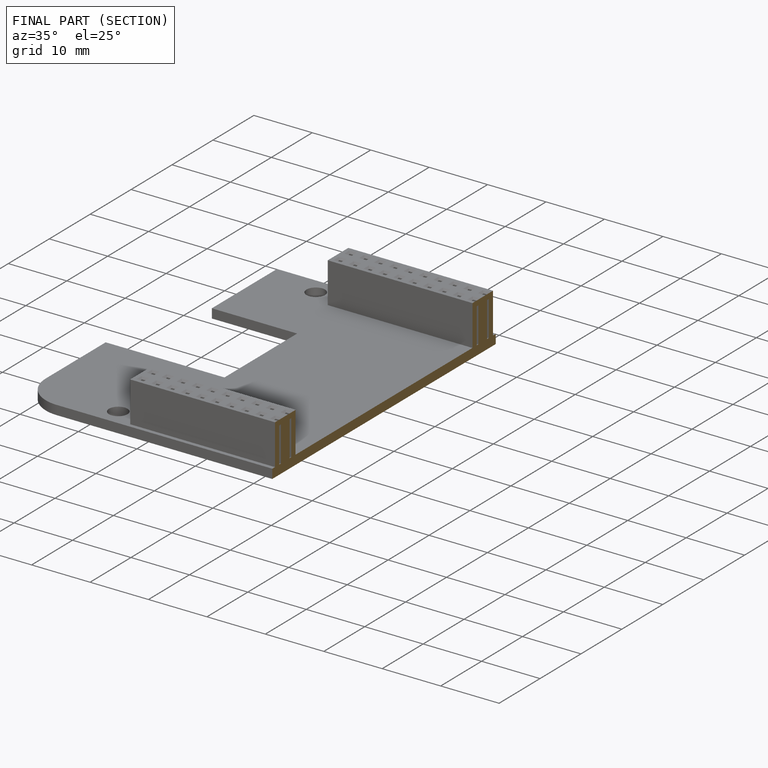
[diagram: finished part — half-section view (interior)]
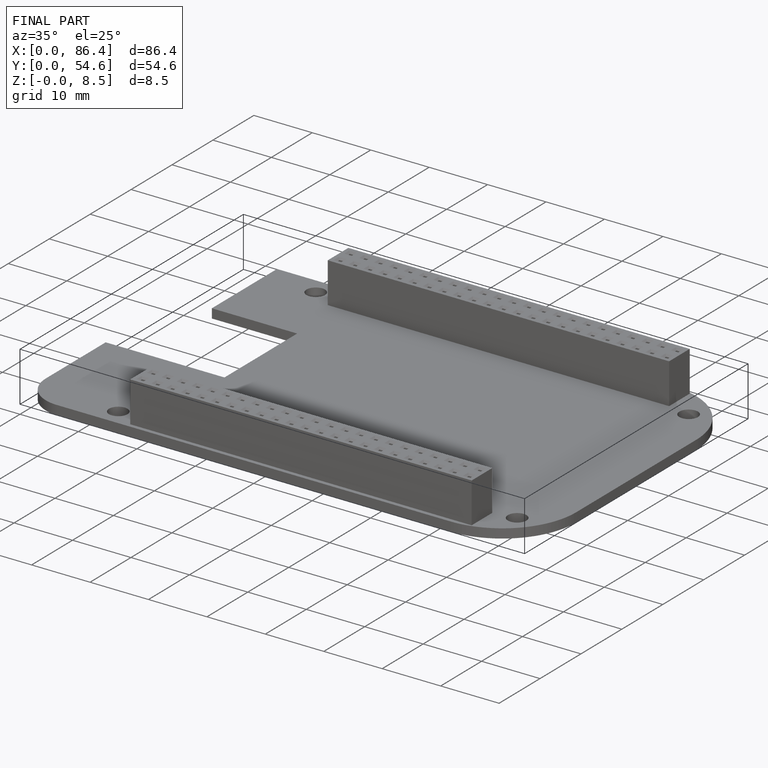
[diagram: finished part — iso view with bounding-box wireframe]
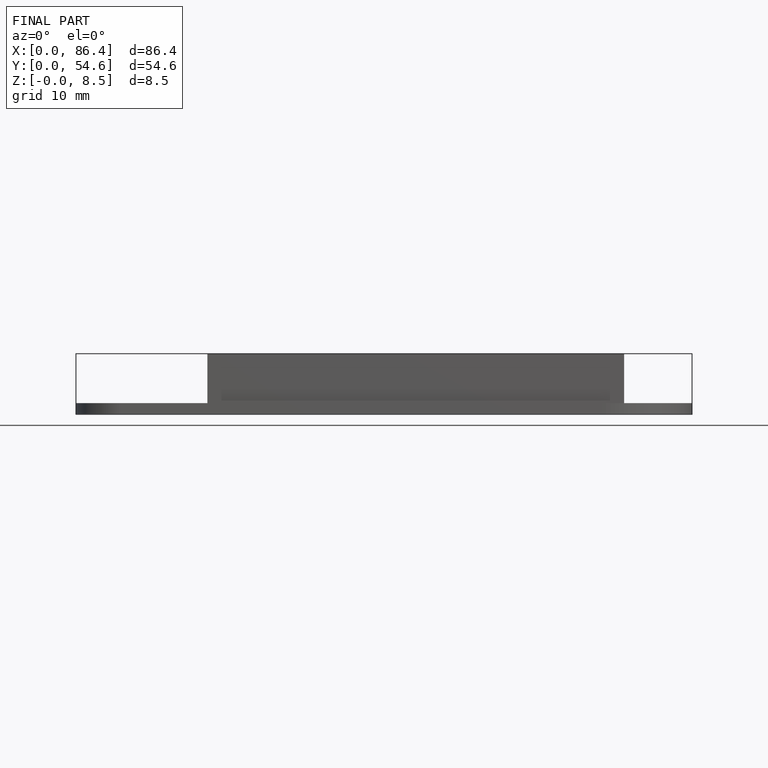
[diagram: finished part — front view with bounding-box wireframe]
